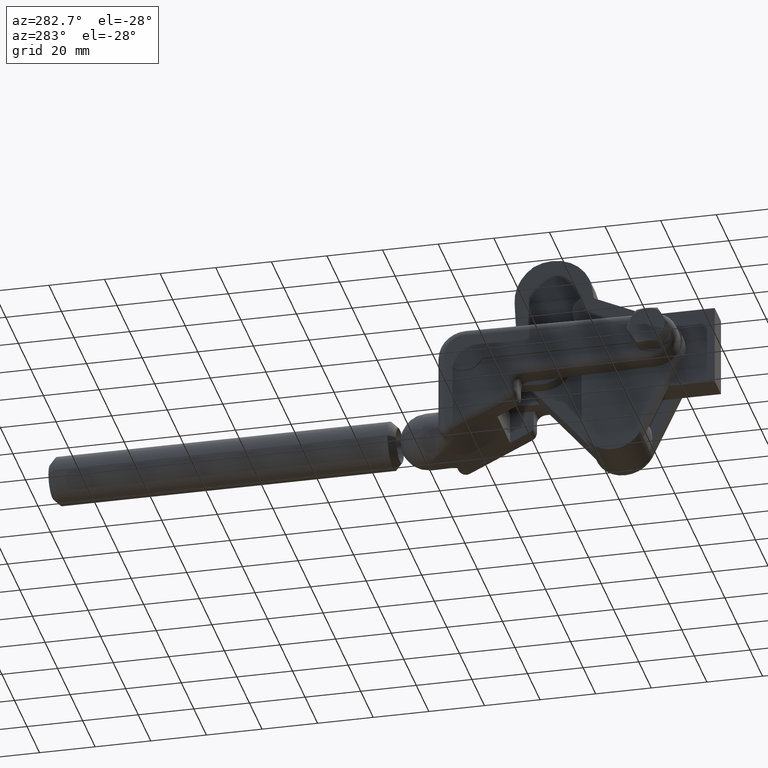
[diagram: clean part render]
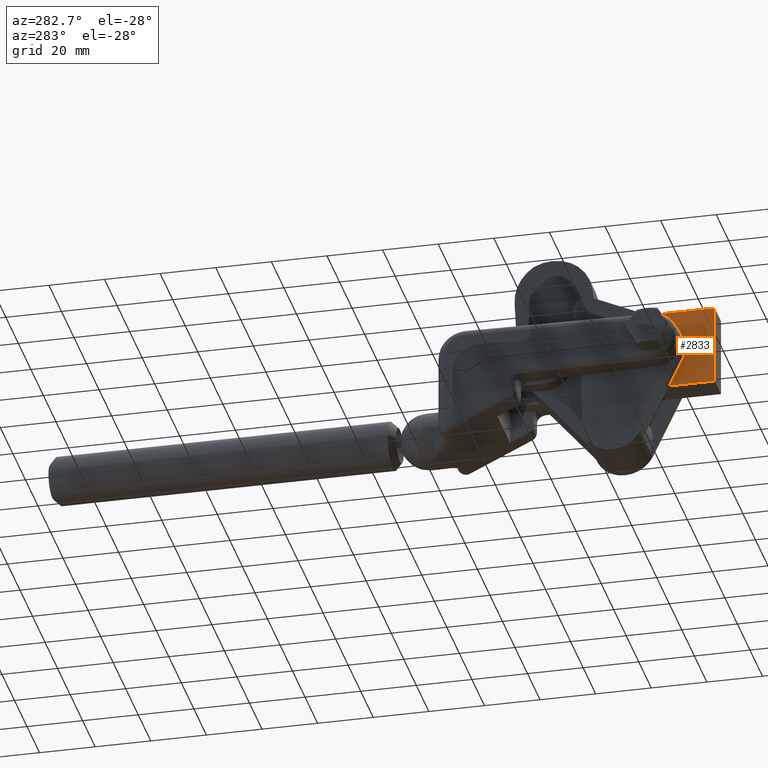
[diagram: same view with one face highlighted and labeled with its STEP entity id]
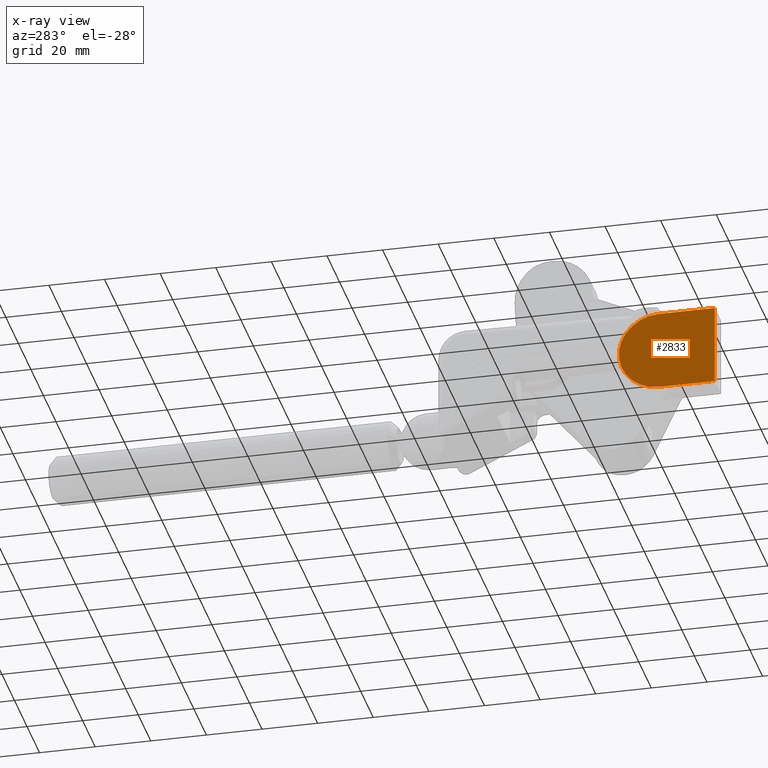
[diagram: x-ray of the same camera — body ghosted, the highlighted face saturated]
A machine part, auxiliary view. The second image highlights one B-rep face of the part: STEP entity #2833.
The next image is the same camera in x-ray: the body ghosted, the highlighted face saturated — about 0% of this face is hidden behind the body in this view.
In plain terms, the highlighted planar face has unit normal (-1, -0, 0).
Its self-contained STEP definition (entity closure, byte-faithful):
#76 = FACE_BOUND ( 'NONE', #3951, .T. ) ;
#320 = ORIENTED_EDGE ( 'NONE', *, *, #5098, .F. ) ;
#390 = CARTESIAN_POINT ( 'NONE',  ( -5.000000000000001800, 20.00000000000000700, -6.302832130430081800E-015 ) ) ;
#442 = CIRCLE ( 'NONE', #3090, 14.50000000000000000 ) ;
#501 = ORIENTED_EDGE ( 'NONE', *, *, #2032, .T. ) ;
#576 = DIRECTION ( 'NONE',  ( 1.000000000000000000, 1.017915798755252000E-016, -6.808143274540083700E-017 ) ) ;
#667 = LINE ( 'NONE', #1294, #4903 ) ;
#705 = DIRECTION ( 'NONE',  ( -1.017915798755234300E-016, 1.000000000000000000, 2.255140518769849200E-016 ) ) ;
#904 = VERTEX_POINT ( 'NONE', #6630 ) ;
#1071 = AXIS2_PLACEMENT_3D ( 'NONE', #3374, #3137, #6031 ) ;
#1235 = CARTESIAN_POINT ( 'NONE',  ( -5.000000000000001800, 20.00000000000000700, -6.302832130430081800E-015 ) ) ;
#1294 = CARTESIAN_POINT ( 'NONE',  ( -5.000000000000000900, 1.766226516865262900E-015, -14.50000000000001100 ) ) ;
#1432 = DIRECTION ( 'NONE',  ( 0.0000000000000000000, 0.0000000000000000000, -1.000000000000000000 ) ) ;
#1500 = DIRECTION ( 'NONE',  ( 1.000000000000000000, 1.017915798755252000E-016, -6.808143274540083700E-017 ) ) ;
#1793 = LINE ( 'NONE', #6682, #2902 ) ;
#1931 = VERTEX_POINT ( 'NONE', #5548 ) ;
#1943 = VERTEX_POINT ( 'NONE', #2180 ) ;
#2032 = EDGE_CURVE ( 'NONE', #1931, #1943, #3472, .T. ) ;
#2180 = CARTESIAN_POINT ( 'NONE',  ( -5.000000000000001800, 20.00000000000000700, -3.000000000000006700 ) ) ;
#2191 = EDGE_CURVE ( 'NONE', #1943, #1931, #6644, .T. ) ;
#2259 = ORIENTED_EDGE ( 'NONE', *, *, #4966, .F. ) ;
#2460 = VERTEX_POINT ( 'NONE', #2574 ) ;
#2574 = CARTESIAN_POINT ( 'NONE',  ( -5.000000000000000900, 20.00000000000001100, 14.49999999999999500 ) ) ;
#2657 = AXIS2_PLACEMENT_3D ( 'NONE', #4686, #1500, #2943 ) ;
#2687 = VERTEX_POINT ( 'NONE', #3145 ) ;
#2778 = CARTESIAN_POINT ( 'NONE',  ( -4.999999999999999100, 1.736356747013286100E-015, 14.49999999999999600 ) ) ;
#2833 = ADVANCED_FACE ( 'NONE', ( #76, #4278 ), #5917, .T. ) ;
#2902 = VECTOR ( 'NONE', #4276, 1000.000000000000000 ) ;
#2907 = DIRECTION ( 'NONE',  ( 5.981805089575197400E-017, 2.392722035830079000E-016, 1.000000000000000000 ) ) ;
#2943 = DIRECTION ( 'NONE',  ( 0.0000000000000000000, 0.0000000000000000000, -1.000000000000000000 ) ) ;
#3032 = ORIENTED_EDGE ( 'NONE', *, *, #6035, .F. ) ;
#3090 = AXIS2_PLACEMENT_3D ( 'NONE', #390, #576, #2907 ) ;
#3096 = VERTEX_POINT ( 'NONE', #3443 ) ;
#3137 = DIRECTION ( 'NONE',  ( -1.000000000000000000, -1.017915798755252000E-016, 6.808143274540125600E-017 ) ) ;
#3145 = CARTESIAN_POINT ( 'NONE',  ( -4.999999999999999100, 1.736356747013286100E-015, 14.49999999999999600 ) ) ;
#3374 = CARTESIAN_POINT ( 'NONE',  ( -5.000000000000001800, 20.00000000000000700, -6.302832130430081800E-015 ) ) ;
#3443 = CARTESIAN_POINT ( 'NONE',  ( -5.000000000000000900, 1.766226516865262900E-015, -14.50000000000001100 ) ) ;
#3469 = DIRECTION ( 'NONE',  ( 1.017915798755234500E-016, -1.000000000000000000, 1.214306433183764700E-016 ) ) ;
#3472 = CIRCLE ( 'NONE', #2657, 3.000000000000000900 ) ;
#3951 = EDGE_LOOP ( 'NONE', ( #501, #4864 ) ) ;
#4276 = DIRECTION ( 'NONE',  ( -6.808143274540126900E-017, 1.029992063861278500E-018, -1.000000000000000000 ) ) ;
#4278 = FACE_OUTER_BOUND ( 'NONE', #6610, .T. ) ;
#4686 = CARTESIAN_POINT ( 'NONE',  ( -5.000000000000001800, 20.00000000000000700, -6.302832130430081800E-015 ) ) ;
#4714 = ORIENTED_EDGE ( 'NONE', *, *, #6410, .F. ) ;
#4864 = ORIENTED_EDGE ( 'NONE', *, *, #2191, .T. ) ;
#4903 = VECTOR ( 'NONE', #705, 1000.000000000000000 ) ;
#4966 = EDGE_CURVE ( 'NONE', #904, #2460, #442, .T. ) ;
#5098 = EDGE_CURVE ( 'NONE', #3096, #904, #667, .T. ) ;
#5218 = VECTOR ( 'NONE', #3469, 1000.000000000000000 ) ;
#5548 = CARTESIAN_POINT ( 'NONE',  ( -5.000000000000001800, 20.00000000000000700, 2.999999999999993300 ) ) ;
#5917 = PLANE ( 'NONE',  #1071 ) ;
#5918 = DIRECTION ( 'NONE',  ( 1.000000000000000000, 1.017915798755252000E-016, -6.808143274540083700E-017 ) ) ;
#6031 = DIRECTION ( 'NONE',  ( 6.808143274540124400E-017, 1.214306433183764700E-016, 1.000000000000000000 ) ) ;
#6035 = EDGE_CURVE ( 'NONE', #2460, #2687, #6596, .T. ) ;
#6174 = AXIS2_PLACEMENT_3D ( 'NONE', #1235, #5918, #1432 ) ;
#6410 = EDGE_CURVE ( 'NONE', #2687, #3096, #1793, .T. ) ;
#6596 = LINE ( 'NONE', #2778, #5218 ) ;
#6610 = EDGE_LOOP ( 'NONE', ( #3032, #2259, #320, #4714 ) ) ;
#6630 = CARTESIAN_POINT ( 'NONE',  ( -5.000000000000002700, 20.00000000000000700, -14.50000000000000500 ) ) ;
#6644 = CIRCLE ( 'NONE', #6174, 3.000000000000000900 ) ;
#6682 = CARTESIAN_POINT ( 'NONE',  ( -4.999999999999999100, 1.736356747013286100E-015, 14.49999999999999600 ) ) ;